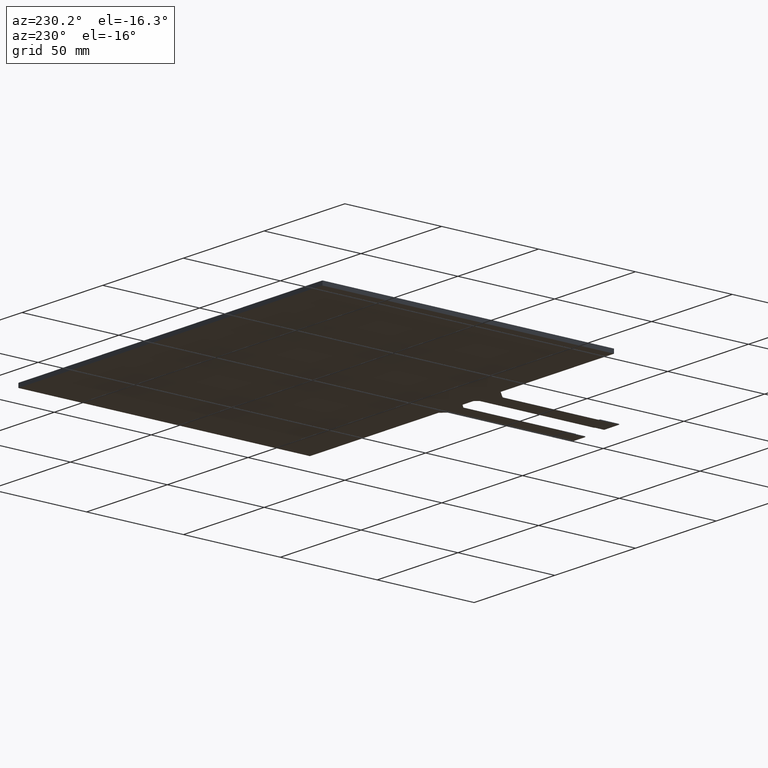
[diagram: clean part render]
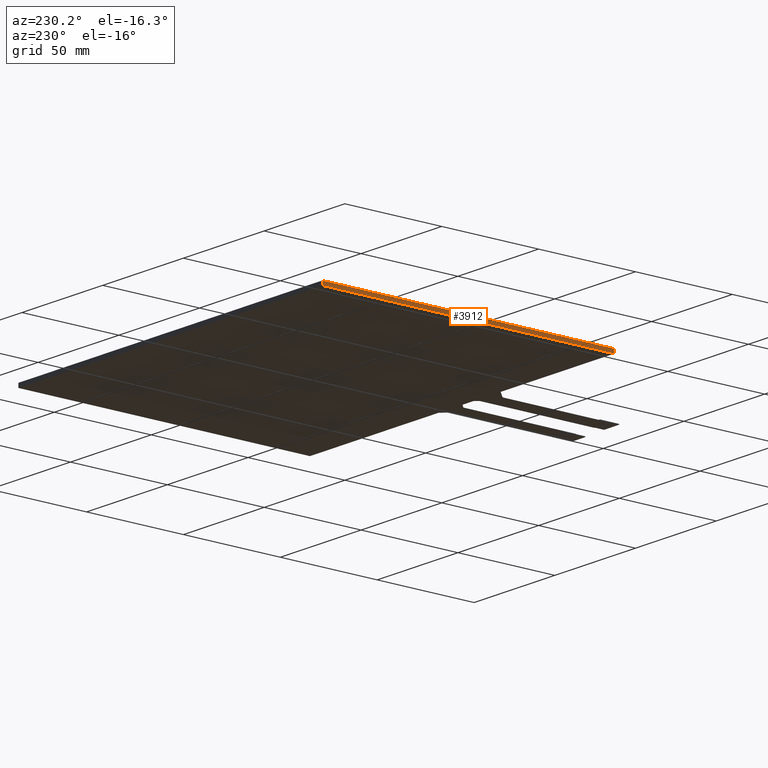
[diagram: same view with one face highlighted and labeled with its STEP entity id]
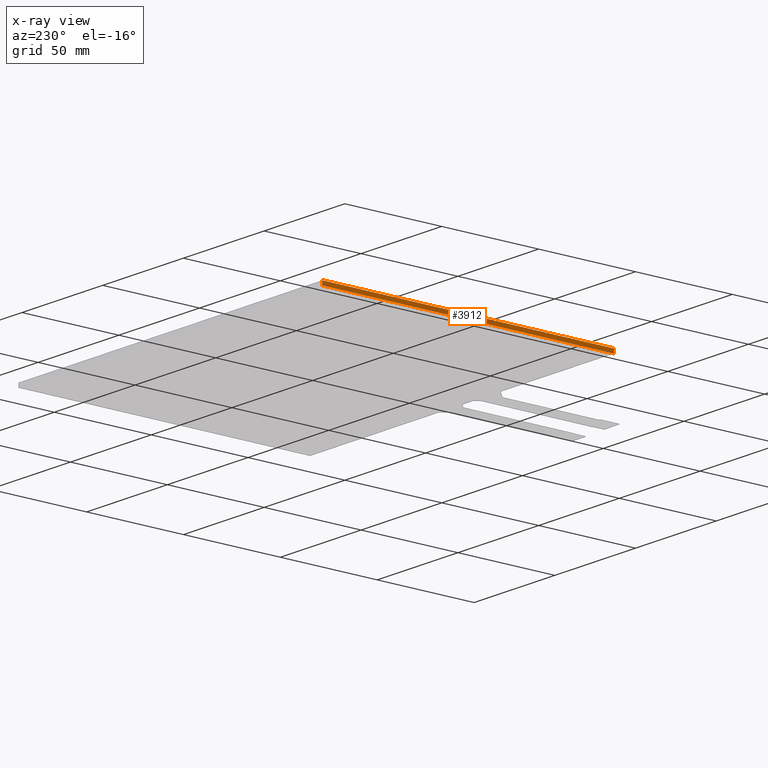
[diagram: x-ray of the same camera — body ghosted, the highlighted face saturated]
A machine part, auxiliary view. The second image highlights one B-rep face of the part: STEP entity #3912.
The next image is the same camera in x-ray: the body ghosted, the highlighted face saturated — about 0% of this face is hidden behind the body in this view.
In plain terms, the highlighted planar face has unit normal (-1, -0, 0).
Its self-contained STEP definition (entity closure, byte-faithful):
#222=PLANE('',#4146);
#412=FACE_OUTER_BOUND('',#604,.T.);
#604=EDGE_LOOP('',(#3684,#3685,#3686,#3687));
#1129=LINE('',#6199,#1657);
#1132=LINE('',#6205,#1660);
#1133=LINE('',#6207,#1661);
#1134=LINE('',#6208,#1662);
#1657=VECTOR('',#5087,10.);
#1660=VECTOR('',#5092,10.);
#1661=VECTOR('',#5093,10.);
#1662=VECTOR('',#5094,10.);
#2053=VERTEX_POINT('',#6196);
#2054=VERTEX_POINT('',#6198);
#2056=VERTEX_POINT('',#6204);
#2057=VERTEX_POINT('',#6206);
#2601=EDGE_CURVE('',#2053,#2054,#1129,.T.);
#2604=EDGE_CURVE('',#2053,#2056,#1132,.T.);
#2605=EDGE_CURVE('',#2057,#2056,#1133,.T.);
#2606=EDGE_CURVE('',#2054,#2057,#1134,.T.);
#3684=ORIENTED_EDGE('',*,*,#2601,.F.);
#3685=ORIENTED_EDGE('',*,*,#2604,.T.);
#3686=ORIENTED_EDGE('',*,*,#2605,.F.);
#3687=ORIENTED_EDGE('',*,*,#2606,.F.);
#3912=ADVANCED_FACE('',(#412),#222,.T.);
#4146=AXIS2_PLACEMENT_3D('',#6203,#5090,#5091);
#5087=DIRECTION('',(1.18030354777425E-16,-1.,0.));
#5090=DIRECTION('center_axis',(-1.,-1.18030354777425E-16,0.));
#5091=DIRECTION('ref_axis',(-1.18030354777425E-16,1.,0.));
#5092=DIRECTION('',(0.,0.,-1.));
#5093=DIRECTION('',(-1.18030354777425E-16,1.,0.));
#5094=DIRECTION('',(0.,0.,-1.));
#6196=CARTESIAN_POINT('',(-94.2,73.4,0.));
#6198=CARTESIAN_POINT('',(-94.2,-77.1,0.));
#6199=CARTESIAN_POINT('',(-94.2,73.4,0.));
#6203=CARTESIAN_POINT('Origin',(-94.2,-77.1,0.));
#6204=CARTESIAN_POINT('',(-94.2,73.4,-2.1));
#6205=CARTESIAN_POINT('',(-94.2,73.4,0.));
#6206=CARTESIAN_POINT('',(-94.2,-77.1,-2.1));
#6207=CARTESIAN_POINT('',(-94.2,73.4,-2.1));
#6208=CARTESIAN_POINT('',(-94.2,-77.1,0.));